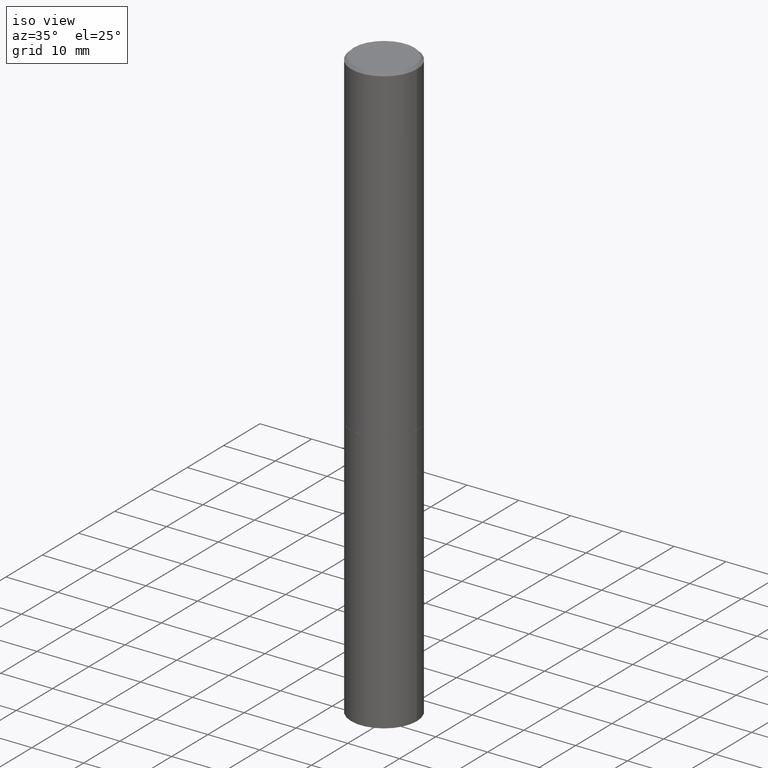
[diagram: clean part render]
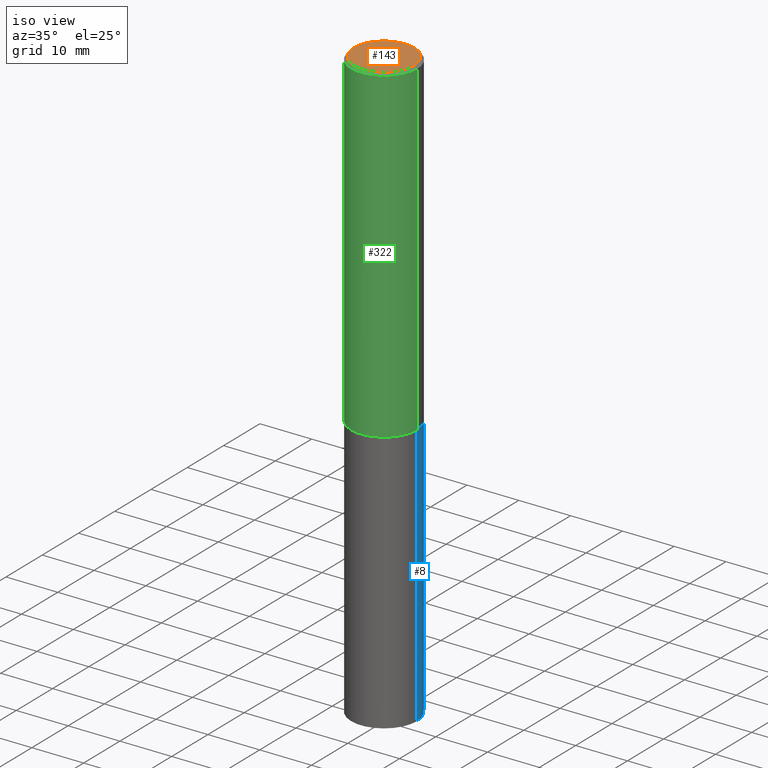
[diagram: same view with three faces highlighted in distinct colors, each labeled with its STEP entity id]
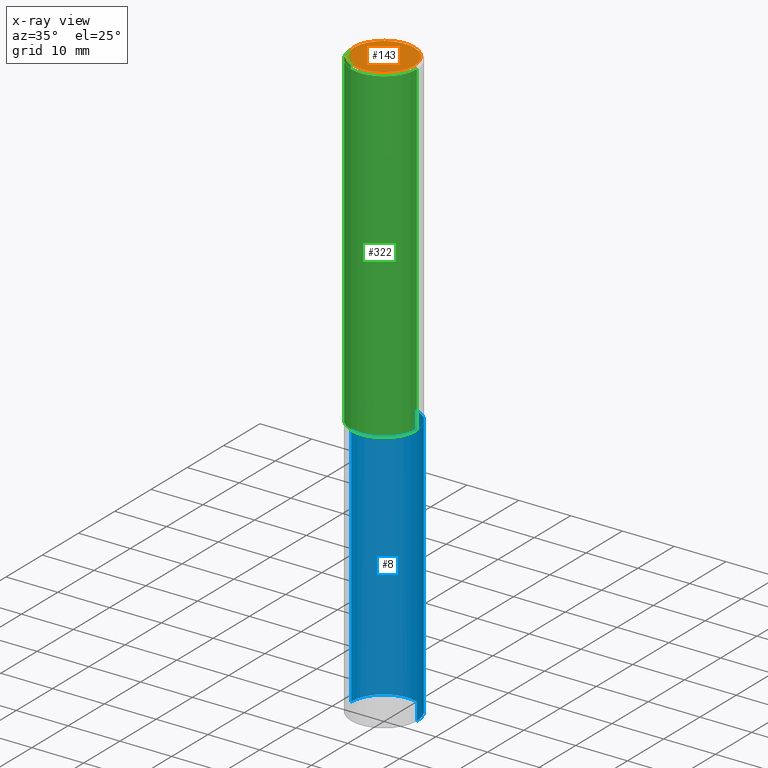
[diagram: x-ray of the same camera — body ghosted, the three highlighted faces saturated]
A machine part, iso view with three faces highlighted in distinct colors.
The next image is the same camera in x-ray (body ghosted, the three faces saturated) — at least one of them is partly hidden behind the body in this view.
Their STEP definitions:

[orange] entity #143 — the highlighted planar face has unit normal (0, -0, -1).
#2 = VERTEX_POINT ( 'NONE', #188 ) ;
#13 = AXIS2_PLACEMENT_3D ( 'NONE', #24, #243, #131 ) ;
#23 = DIRECTION ( 'NONE',  ( -2.445468806185136597E-29, 3.491481338843145583E-15, 1.000000000000000000 ) ) ;
#24 = CARTESIAN_POINT ( 'NONE',  ( 0.000000000000000000, 0.000000000000000000, 0.000000000000000000 ) ) ;
#38 = AXIS2_PLACEMENT_3D ( 'NONE', #287, #211, #325 ) ;
#100 = EDGE_CURVE ( 'NONE', #2, #148, #179, .T. ) ;
#131 = DIRECTION ( 'NONE',  ( 1.000000000000000000, -6.982962677686266711E-15, 4.876176775795936353E-29 ) ) ;
#136 = DIRECTION ( 'NONE',  ( 1.000000000000000000, -6.982962677686266711E-15, 4.876176775795936353E-29 ) ) ;
#143 = ADVANCED_FACE ( 'NONE', ( #271 ), #234, .F. ) ;
#148 = VERTEX_POINT ( 'NONE', #313 ) ;
#159 = CIRCLE ( 'NONE', #354, 0.2299999999999995937 ) ;
#163 = CARTESIAN_POINT ( 'NONE',  ( 0.000000000000000000, 0.000000000000000000, 0.000000000000000000 ) ) ;
#172 = EDGE_LOOP ( 'NONE', ( #212, #335 ) ) ;
#179 = CIRCLE ( 'NONE', #13, 0.2299999999999995937 ) ;
#188 = CARTESIAN_POINT ( 'NONE',  ( -0.2299999999999995937, 1.640996229256269955E-15, -1.135408596578603879E-29 ) ) ;
#211 = DIRECTION ( 'NONE',  ( 2.438088387897960049E-29, -3.491481338843145188E-15, -1.000000000000000000 ) ) ;
#212 = ORIENTED_EDGE ( 'NONE', *, *, #100, .T. ) ;
#234 = PLANE ( 'NONE',  #38 ) ;
#243 = DIRECTION ( 'NONE',  ( -2.445468806185136597E-29, 3.491481338843145583E-15, 1.000000000000000000 ) ) ;
#247 = EDGE_CURVE ( 'NONE', #148, #2, #159, .T. ) ;
#271 = FACE_OUTER_BOUND ( 'NONE', #172, .T. ) ;
#287 = CARTESIAN_POINT ( 'NONE',  ( 1.606081415867838306E-15, 0.2299999999999995937, -8.030407079339221114E-16 ) ) ;
#313 = CARTESIAN_POINT ( 'NONE',  ( 0.2299999999999995937, -1.681434332853596842E-15, 1.149527484987431259E-29 ) ) ;
#325 = DIRECTION ( 'NONE',  ( -1.000000000000000000, 6.982962677686265922E-15, -4.876176775795935793E-29 ) ) ;
#335 = ORIENTED_EDGE ( 'NONE', *, *, #247, .T. ) ;
#354 = AXIS2_PLACEMENT_3D ( 'NONE', #163, #23, #136 ) ;

[blue] entity #8 — the highlighted cylindrical surface (partial cylindrical patch) has radius 6.35 mm, axis along (-0, 0, 1).
#8 = ADVANCED_FACE ( 'NONE', ( #300 ), #41, .T. ) ;
#12 = DIRECTION ( 'NONE',  ( -2.445468806185136597E-29, 3.491481338843145583E-15, 1.000000000000000000 ) ) ;
#28 = VERTEX_POINT ( 'NONE', #329 ) ;
#40 = ORIENTED_EDGE ( 'NONE', *, *, #125, .T. ) ;
#41 = CYLINDRICAL_SURFACE ( 'NONE', #216, 0.2500000000000000000 ) ;
#50 = LINE ( 'NONE', #284, #186 ) ;
#53 = VERTEX_POINT ( 'NONE', #277 ) ;
#64 = DIRECTION ( 'NONE',  ( -2.445468806185136597E-29, 3.491481338843145583E-15, 1.000000000000000000 ) ) ;
#68 = CIRCLE ( 'NONE', #205, 0.2500000000000000000 ) ;
#71 = ORIENTED_EDGE ( 'NONE', *, *, #171, .T. ) ;
#75 = EDGE_CURVE ( 'NONE', #53, #273, #50, .T. ) ;
#84 = DIRECTION ( 'NONE',  ( -2.445468806185136877E-29, 3.491481338843145188E-15, 1.000000000000000000 ) ) ;
#96 = DIRECTION ( 'NONE',  ( 1.000000000000000000, -6.982962677686266711E-15, 0.000000000000000000 ) ) ;
#104 = CIRCLE ( 'NONE', #153, 0.2500000000000000000 ) ;
#110 = DIRECTION ( 'NONE',  ( -2.445468806185136877E-29, 3.491481338843145188E-15, 1.000000000000000000 ) ) ;
#125 = EDGE_CURVE ( 'NONE', #53, #178, #104, .T. ) ;
#137 = EDGE_CURVE ( 'NONE', #273, #28, #68, .T. ) ;
#144 = ORIENTED_EDGE ( 'NONE', *, *, #137, .F. ) ;
#149 = DIRECTION ( 'NONE',  ( -2.445468806185136597E-29, 3.491481338843145583E-15, 1.000000000000000000 ) ) ;
#153 = AXIS2_PLACEMENT_3D ( 'NONE', #358, #64, #349 ) ;
#156 = CARTESIAN_POINT ( 'NONE',  ( 0.000000000000000000, 0.000000000000000000, 0.000000000000000000 ) ) ;
#171 = EDGE_CURVE ( 'NONE', #178, #28, #279, .T. ) ;
#178 = VERTEX_POINT ( 'NONE', #291 ) ;
#186 = VECTOR ( 'NONE', #110, 39.37007874015748143 ) ;
#205 = AXIS2_PLACEMENT_3D ( 'NONE', #237, #149, #96 ) ;
#216 = AXIS2_PLACEMENT_3D ( 'NONE', #156, #12, #240 ) ;
#218 = CARTESIAN_POINT ( 'NONE',  ( -0.2500000000000000000, 1.776356839400250465E-15, -1.229733772563726445E-29 ) ) ;
#237 = CARTESIAN_POINT ( 'NONE',  ( 6.113672015462842613E-29, -8.728703347107864943E-15, -2.500000000000000000 ) ) ;
#240 = DIRECTION ( 'NONE',  ( 1.000000000000000000, -6.982962677686266711E-15, 4.876176775795935793E-29 ) ) ;
#252 = CARTESIAN_POINT ( 'NONE',  ( 0.2500000000000000000, -1.047444401652943162E-14, -2.500000000000000000 ) ) ;
#265 = EDGE_LOOP ( 'NONE', ( #40, #71, #144, #318 ) ) ;
#273 = VERTEX_POINT ( 'NONE', #252 ) ;
#277 = CARTESIAN_POINT ( 'NONE',  ( 0.2500000000000000000, -1.745740669421572357E-14, -4.500000000000000000 ) ) ;
#279 = LINE ( 'NONE', #218, #281 ) ;
#281 = VECTOR ( 'NONE', #84, 39.37007874015748143 ) ;
#284 = CARTESIAN_POINT ( 'NONE',  ( 0.2500000000000000000, -1.745740669421566678E-15, 1.219044193948983948E-29 ) ) ;
#291 = CARTESIAN_POINT ( 'NONE',  ( -0.2500000000000000000, -1.044382784655076046E-14, -4.500000000000000000 ) ) ;
#300 = FACE_OUTER_BOUND ( 'NONE', #265, .T. ) ;
#318 = ORIENTED_EDGE ( 'NONE', *, *, #75, .F. ) ;
#329 = CARTESIAN_POINT ( 'NONE',  ( -0.2500000000000000000, -1.044382784655076046E-14, -2.500000000000000000 ) ) ;
#349 = DIRECTION ( 'NONE',  ( 1.000000000000000000, -6.982962677686270655E-15, 0.000000000000000000 ) ) ;
#358 = CARTESIAN_POINT ( 'NONE',  ( 1.100460962783311469E-28, -1.571166602479415690E-14, -4.500000000000000000 ) ) ;

[green] entity #322 — the highlighted cylindrical surface (partial cylindrical patch) has radius 6.35 mm, axis along (-0, 0, 1).
#27 = CARTESIAN_POINT ( 'NONE',  ( -0.2499999999999999722, -2.621163906872689391E-15, -2.499000000000000110 ) ) ;
#29 = FACE_OUTER_BOUND ( 'NONE', #270, .T. ) ;
#54 = DIRECTION ( 'NONE',  ( 1.000000000000000000, -6.982962677686266711E-15, 0.000000000000000000 ) ) ;
#57 = DIRECTION ( 'NONE',  ( 1.000000000000000000, -6.982962677686266711E-15, 0.000000000000000000 ) ) ;
#69 = AXIS2_PLACEMENT_3D ( 'NONE', #226, #309, #262 ) ;
#76 = CARTESIAN_POINT ( 'NONE',  ( 4.890937612370289799E-31, -6.982962677686315028E-17, -0.02000000000000006981 ) ) ;
#78 = DIRECTION ( 'NONE',  ( -2.445468806185136597E-29, 3.491481338843145583E-15, 1.000000000000000000 ) ) ;
#87 = ORIENTED_EDGE ( 'NONE', *, *, #316, .F. ) ;
#91 = AXIS2_PLACEMENT_3D ( 'NONE', #76, #78, #54 ) ;
#98 = ORIENTED_EDGE ( 'NONE', *, *, #200, .T. ) ;
#103 = CARTESIAN_POINT ( 'NONE',  ( -0.2499999999999996947, 1.675911042644701407E-15, -0.02000000000000006981 ) ) ;
#115 = CARTESIAN_POINT ( 'NONE',  ( 0.2500000000000000000, -1.047095253519058861E-14, -2.499000000000000110 ) ) ;
#116 = VERTEX_POINT ( 'NONE', #103 ) ;
#126 = ORIENTED_EDGE ( 'NONE', *, *, #166, .T. ) ;
#127 = CIRCLE ( 'NONE', #91, 0.2499999999999996947 ) ;
#140 = CIRCLE ( 'NONE', #248, 0.2500000000000000000 ) ;
#142 = VERTEX_POINT ( 'NONE', #27 ) ;
#154 = VECTOR ( 'NONE', #198, 39.37007874015748143 ) ;
#166 = EDGE_CURVE ( 'NONE', #142, #319, #140, .T. ) ;
#195 = LINE ( 'NONE', #228, #320 ) ;
#198 = DIRECTION ( 'NONE',  ( -2.445468806185136877E-29, 3.491481338843145188E-15, 1.000000000000000000 ) ) ;
#199 = CARTESIAN_POINT ( 'NONE',  ( 0.2499999999999996947, -1.784954126219743822E-15, -0.02000000000000006981 ) ) ;
#200 = EDGE_CURVE ( 'NONE', #319, #225, #195, .T. ) ;
#201 = CARTESIAN_POINT ( 'NONE',  ( 6.111226546656657010E-29, -8.725211865769021935E-15, -2.499000000000000110 ) ) ;
#220 = CARTESIAN_POINT ( 'NONE',  ( -0.2499999999999998612, 1.776356839400249479E-15, -1.229733772563725745E-29 ) ) ;
#225 = VERTEX_POINT ( 'NONE', #199 ) ;
#226 = CARTESIAN_POINT ( 'NONE',  ( 0.000000000000000000, 0.000000000000000000, 0.000000000000000000 ) ) ;
#228 = CARTESIAN_POINT ( 'NONE',  ( 0.2499999999999998612, -1.745740669421565692E-15, 1.219044193948983248E-29 ) ) ;
#248 = AXIS2_PLACEMENT_3D ( 'NONE', #201, #365, #57 ) ;
#262 = DIRECTION ( 'NONE',  ( 1.000000000000000000, -6.982962677686266711E-15, 4.876176775795935793E-29 ) ) ;
#264 = EDGE_CURVE ( 'NONE', #116, #225, #127, .T. ) ;
#270 = EDGE_LOOP ( 'NONE', ( #87, #126, #98, #342 ) ) ;
#305 = CYLINDRICAL_SURFACE ( 'NONE', #69, 0.2499999999999998612 ) ;
#309 = DIRECTION ( 'NONE',  ( -2.445468806185136597E-29, 3.491481338843145583E-15, 1.000000000000000000 ) ) ;
#316 = EDGE_CURVE ( 'NONE', #142, #116, #364, .T. ) ;
#319 = VERTEX_POINT ( 'NONE', #115 ) ;
#320 = VECTOR ( 'NONE', #334, 39.37007874015748143 ) ;
#322 = ADVANCED_FACE ( 'NONE', ( #29 ), #305, .T. ) ;
#334 = DIRECTION ( 'NONE',  ( -2.445468806185136877E-29, 3.491481338843145188E-15, 1.000000000000000000 ) ) ;
#342 = ORIENTED_EDGE ( 'NONE', *, *, #264, .F. ) ;
#364 = LINE ( 'NONE', #220, #154 ) ;
#365 = DIRECTION ( 'NONE',  ( -2.445468806185136597E-29, 3.491481338843145583E-15, 1.000000000000000000 ) ) ;